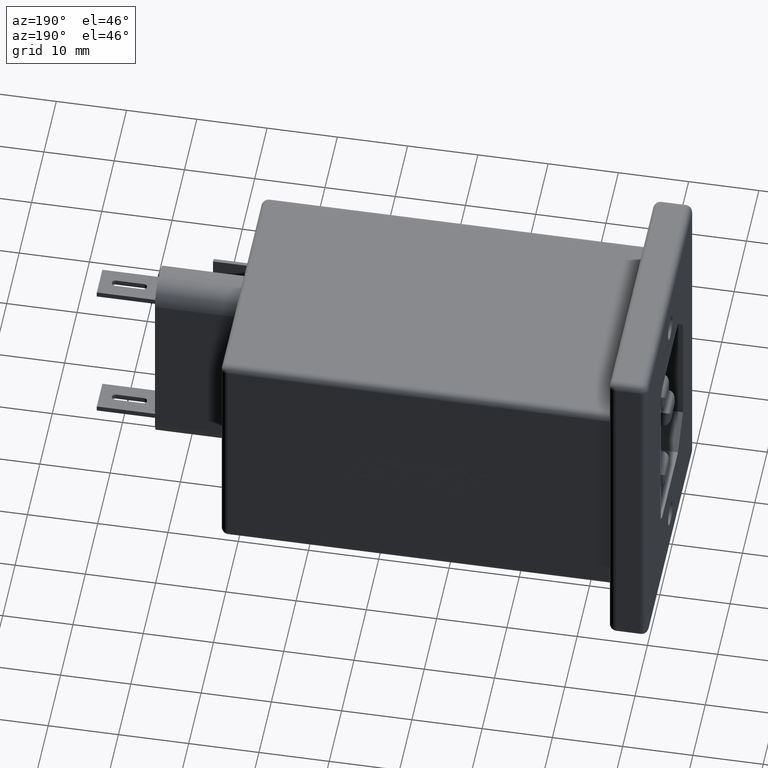
[diagram: clean part render]
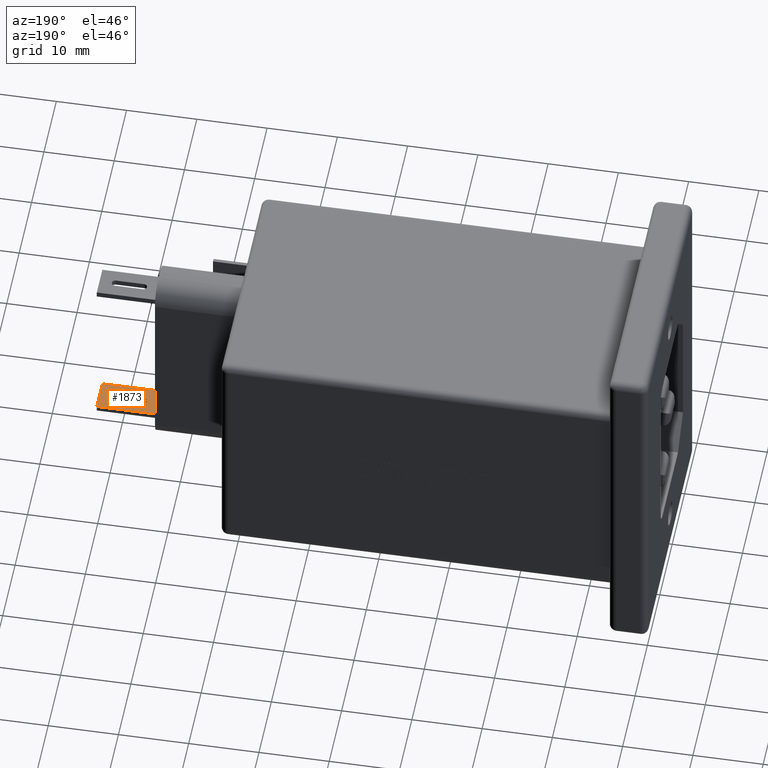
[diagram: same view with one face highlighted and labeled with its STEP entity id]
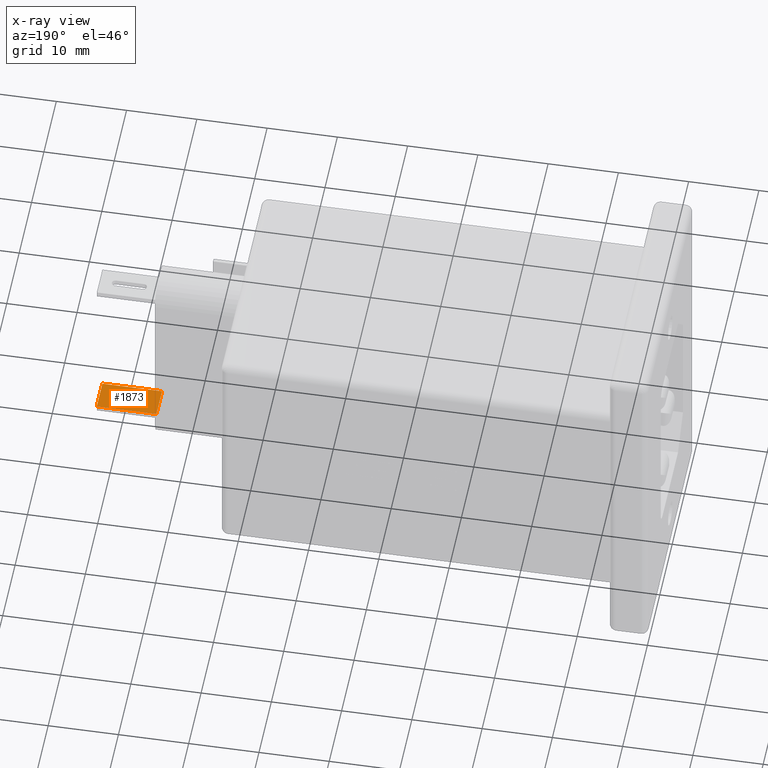
[diagram: x-ray of the same camera — body ghosted, the highlighted face saturated]
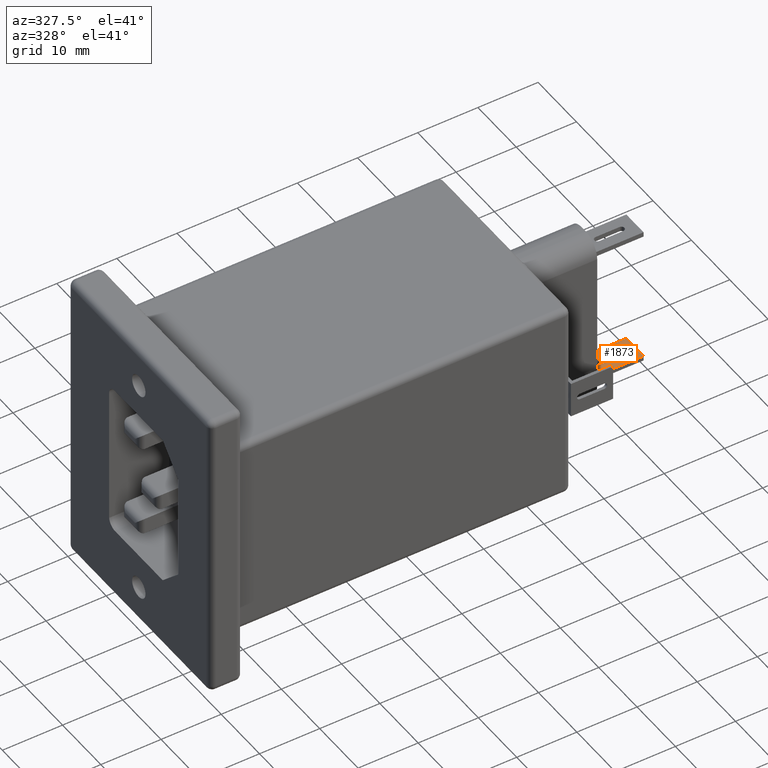
[diagram: same view with one face highlighted and labeled with its STEP entity id]
A machine part, auxiliary view. The second image highlights one B-rep face of the part: STEP entity #1873.
The next image is the same camera in x-ray: the body ghosted, the highlighted face saturated — about 0% of this face is hidden behind the body in this view.
A second angle (auxiliary view) of the same face is appended — the face is thin or edge-on in the first view.
In plain terms, the highlighted planar face has unit normal (0, 0, 1).
Its self-contained STEP definition (entity closure, byte-faithful):
#199 = CARTESIAN_POINT ( 'NONE',  ( 81.49999999999998600, -17.75000000000000000, 13.90000000000000200 ) ) ;
#601 = EDGE_CURVE ( 'NONE', #935, #6960, #5629, .T. ) ;
#721 = FACE_OUTER_BOUND ( 'NONE', #1257, .T. ) ;
#738 = LINE ( 'NONE', #1875, #6478 ) ;
#742 = VECTOR ( 'NONE', #7052, 1000.000000000000000 ) ;
#787 = DIRECTION ( 'NONE',  ( 1.000000000000000000, 0.0000000000000000000, 0.0000000000000000000 ) ) ;
#829 = LINE ( 'NONE', #199, #4668 ) ;
#935 = VERTEX_POINT ( 'NONE', #6296 ) ;
#1233 = VERTEX_POINT ( 'NONE', #2342 ) ;
#1257 = EDGE_LOOP ( 'NONE', ( #6232, #2491, #4717, #6948 ) ) ;
#1357 = AXIS2_PLACEMENT_3D ( 'NONE', #2932, #4649, #6859 ) ;
#1388 = EDGE_CURVE ( 'NONE', #1233, #1997, #829, .T. ) ;
#1764 = CARTESIAN_POINT ( 'NONE',  ( 74.74999999999998600, -20.00000000000000700, 13.89999999999999500 ) ) ;
#1766 = VERTEX_POINT ( 'NONE', #5036 ) ;
#1873 = ADVANCED_FACE ( 'NONE', ( #721, #4996 ), #5696, .T. ) ;
#1875 = CARTESIAN_POINT ( 'NONE',  ( 75.24999999999998600, -20.50000000000000000, 13.89999999999999500 ) ) ;
#1883 = LINE ( 'NONE', #2070, #4920 ) ;
#1892 = ORIENTED_EDGE ( 'NONE', *, *, #2956, .F. ) ;
#1997 = VERTEX_POINT ( 'NONE', #6067 ) ;
#2070 = CARTESIAN_POINT ( 'NONE',  ( 81.49999999999998600, -22.25000000000000000, 13.89999999999999500 ) ) ;
#2112 = EDGE_CURVE ( 'NONE', #6848, #1997, #5771, .T. ) ;
#2192 = CARTESIAN_POINT ( 'NONE',  ( 73.00000000000000000, -22.25000000000000000, 13.89999999999999500 ) ) ;
#2250 = LINE ( 'NONE', #4872, #742 ) ;
#2307 = VECTOR ( 'NONE', #2350, 1000.000000000000000 ) ;
#2327 = VECTOR ( 'NONE', #4613, 1000.000000000000000 ) ;
#2342 = CARTESIAN_POINT ( 'NONE',  ( 81.49999999999998600, -17.75000000000000000, 13.90000000000000200 ) ) ;
#2350 = DIRECTION ( 'NONE',  ( 0.0000000000000000000, 1.000000000000000000, 0.0000000000000000000 ) ) ;
#2491 = ORIENTED_EDGE ( 'NONE', *, *, #4549, .F. ) ;
#2688 = ORIENTED_EDGE ( 'NONE', *, *, #601, .F. ) ;
#2692 = CARTESIAN_POINT ( 'NONE',  ( 75.24999999999998600, -20.00000000000000700, 13.89999999999999500 ) ) ;
#2880 = EDGE_LOOP ( 'NONE', ( #4980, #6505, #1892, #2688, #6202 ) ) ;
#2900 = CIRCLE ( 'NONE', #5618, 0.5000000000000004400 ) ;
#2932 = CARTESIAN_POINT ( 'NONE',  ( 81.49999999999998600, -22.25000000000000000, 13.89999999999999500 ) ) ;
#2956 = EDGE_CURVE ( 'NONE', #6960, #3330, #2900, .T. ) ;
#2971 = CARTESIAN_POINT ( 'NONE',  ( 79.24999999999998600, -20.00000000000000700, 13.89999999999999500 ) ) ;
#3125 = CIRCLE ( 'NONE', #6693, 0.5000000000000004400 ) ;
#3184 = EDGE_CURVE ( 'NONE', #3330, #1766, #6088, .T. ) ;
#3310 = DIRECTION ( 'NONE',  ( 0.0000000000000000000, 0.0000000000000000000, 1.000000000000000000 ) ) ;
#3330 = VERTEX_POINT ( 'NONE', #1764 ) ;
#3345 = CARTESIAN_POINT ( 'NONE',  ( 79.24999999999998600, -20.50000000000000000, 13.89999999999999500 ) ) ;
#3555 = AXIS2_PLACEMENT_3D ( 'NONE', #2692, #4360, #4333 ) ;
#3924 = EDGE_CURVE ( 'NONE', #4479, #1233, #2250, .T. ) ;
#4017 = DIRECTION ( 'NONE',  ( 1.000000000000000000, 0.0000000000000000000, 0.0000000000000000000 ) ) ;
#4049 = CARTESIAN_POINT ( 'NONE',  ( 75.24999999999998600, -19.50000000000001400, 13.89999999999999500 ) ) ;
#4063 = CARTESIAN_POINT ( 'NONE',  ( 81.49999999999998600, -22.25000000000000000, 13.89999999999999500 ) ) ;
#4287 = DIRECTION ( 'NONE',  ( -1.000000000000000000, -0.0000000000000000000, -0.0000000000000000000 ) ) ;
#4333 = DIRECTION ( 'NONE',  ( 1.000000000000000000, 0.0000000000000000000, 0.0000000000000000000 ) ) ;
#4360 = DIRECTION ( 'NONE',  ( 0.0000000000000000000, 0.0000000000000000000, 1.000000000000000000 ) ) ;
#4479 = VERTEX_POINT ( 'NONE', #4063 ) ;
#4539 = CARTESIAN_POINT ( 'NONE',  ( 75.24999999999998600, -20.00000000000000700, 13.89999999999999500 ) ) ;
#4549 = EDGE_CURVE ( 'NONE', #4479, #6848, #1883, .T. ) ;
#4613 = DIRECTION ( 'NONE',  ( -1.000000000000000000, 0.0000000000000000000, 0.0000000000000000000 ) ) ;
#4649 = DIRECTION ( 'NONE',  ( 0.0000000000000000000, 0.0000000000000000000, 1.000000000000000000 ) ) ;
#4668 = VECTOR ( 'NONE', #6312, 1000.000000000000000 ) ;
#4717 = ORIENTED_EDGE ( 'NONE', *, *, #3924, .T. ) ;
#4872 = CARTESIAN_POINT ( 'NONE',  ( 81.49999999999998600, -20.00000000000000000, 13.89999999999999500 ) ) ;
#4920 = VECTOR ( 'NONE', #4287, 1000.000000000000000 ) ;
#4980 = ORIENTED_EDGE ( 'NONE', *, *, #6649, .F. ) ;
#4996 = FACE_BOUND ( 'NONE', #2880, .T. ) ;
#5036 = CARTESIAN_POINT ( 'NONE',  ( 75.24999999999998600, -20.50000000000000000, 13.89999999999999500 ) ) ;
#5592 = CARTESIAN_POINT ( 'NONE',  ( 75.24999999999998600, -19.50000000000001400, 13.89999999999999500 ) ) ;
#5599 = EDGE_CURVE ( 'NONE', #6939, #935, #3125, .T. ) ;
#5618 = AXIS2_PLACEMENT_3D ( 'NONE', #4539, #3310, #4017 ) ;
#5629 = LINE ( 'NONE', #4049, #2327 ) ;
#5696 = PLANE ( 'NONE',  #1357 ) ;
#5771 = LINE ( 'NONE', #6730, #2307 ) ;
#6067 = CARTESIAN_POINT ( 'NONE',  ( 73.00000000000000000, -17.75000000000000000, 13.89999999999999500 ) ) ;
#6088 = CIRCLE ( 'NONE', #3555, 0.5000000000000004400 ) ;
#6202 = ORIENTED_EDGE ( 'NONE', *, *, #5599, .F. ) ;
#6232 = ORIENTED_EDGE ( 'NONE', *, *, #2112, .F. ) ;
#6296 = CARTESIAN_POINT ( 'NONE',  ( 79.24999999999998600, -19.50000000000001400, 13.89999999999999500 ) ) ;
#6312 = DIRECTION ( 'NONE',  ( -1.000000000000000000, -0.0000000000000000000, -0.0000000000000000000 ) ) ;
#6478 = VECTOR ( 'NONE', #787, 1000.000000000000000 ) ;
#6505 = ORIENTED_EDGE ( 'NONE', *, *, #3184, .F. ) ;
#6649 = EDGE_CURVE ( 'NONE', #1766, #6939, #738, .T. ) ;
#6693 = AXIS2_PLACEMENT_3D ( 'NONE', #2971, #6872, #6833 ) ;
#6730 = CARTESIAN_POINT ( 'NONE',  ( 73.00000000000000000, -22.25000000000000000, 13.89999999999999500 ) ) ;
#6833 = DIRECTION ( 'NONE',  ( 1.000000000000000000, 0.0000000000000000000, 0.0000000000000000000 ) ) ;
#6848 = VERTEX_POINT ( 'NONE', #2192 ) ;
#6859 = DIRECTION ( 'NONE',  ( 1.000000000000000000, 0.0000000000000000000, -0.0000000000000000000 ) ) ;
#6872 = DIRECTION ( 'NONE',  ( 0.0000000000000000000, 0.0000000000000000000, 1.000000000000000000 ) ) ;
#6939 = VERTEX_POINT ( 'NONE', #3345 ) ;
#6948 = ORIENTED_EDGE ( 'NONE', *, *, #1388, .T. ) ;
#6960 = VERTEX_POINT ( 'NONE', #5592 ) ;
#7052 = DIRECTION ( 'NONE',  ( 0.0000000000000000000, 1.000000000000000000, 3.083952846180987300E-015 ) ) ;